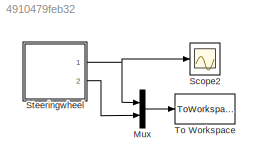
MODEL slx_4910479feb32
KIND model
CONFIG AbsTol = auto
CONFIG EnableMultiTasking = off
CONFIG FixedStep = auto
CONFIG MaxStep = 1e-2
CONFIG MinStep = auto
CONFIG RelTol = 1e-6
CONFIG SampleTimeConstraint = Unconstrained
CONFIG Solver = ode45
CONFIG SolverName = ode45
CONFIG StartTime = 0.0
CONFIG StopTime = 10
BLOCK [Mux] Mux
  DisplayOption = bar
  Inputs = 2
  Ports = [2, 1]
BLOCK [Scope] Scope2
  Floating = off
  NumInputPorts = 1
  Ports = [1]
  ScopeSpecificationString = Simulink.scopes.TimeScopeBlockCfg('CurrentConfiguration', extmgr.ConfigurationSet(extmgr.Configuration('Core','General UI',true),extmgr.Configuration('Core','Source UI',true),extmgr.Configuration('Sources','WiredSimulink',true,'DataLoggingVariableName','ScopeData2'),extmgr.Configuration('Visuals','Time Domain',true,'SerializedDisplays',{struct('MinYLimReal','-1.23875','MaxYLimReal','1.24875','YLab...<+1378ch>
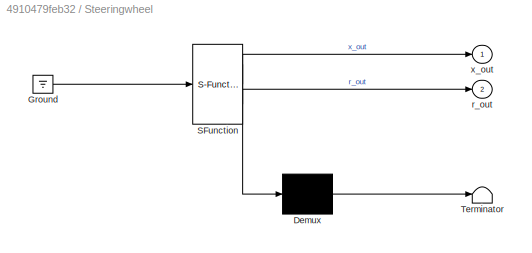
BLOCK [SubSystem] Steeringwheel
  ErrorFcn = Stateflow.Translate.translate
  PermitHierarchicalResolution = ExplicitOnly
  Ports = [0, 2]
  RequestExecContextInheritance = off
  SFBlockType = Chart
  TreatAsAtomicUnit = on
BLOCK [Demux] Steeringwheel/ Demux 
  Outputs = 1
  Ports = [1, 1]
BLOCK [Ground] Steeringwheel/ Ground 
BLOCK [S-Function] Steeringwheel/ SFunction 
  EnableBusSupport = on
  FunctionName = sf_sfun
  PortCounts = [1 3]
  Ports = [1, 3]
  SFcnIsStateOwnerBlock = off
  SFunctionDeploymentMode = off
  Tag = Stateflow S-Function steeringwheel 2
BLOCK [Terminator] Steeringwheel/ Terminator 
BLOCK [Outport] Steeringwheel/r_out
  IconDisplay = Port number
  Port = 2
BLOCK [Outport] Steeringwheel/x_out
  IconDisplay = Port number
BLOCK [ToWorkspace] To Workspace
  FixptAsFi = on
  MaxDataPoints = inf
  Ports = [1]
  SampleTime = -1
  Save2DSignal = 3-D array (concatenate along third dimension)
  SaveFormat = Timeseries
  VariableName = result
LINE Mux:1 -> To Workspace:1
NET Steeringwheel:1 -> Mux:1, Scope2:1
LINE Steeringwheel:2 -> Mux:2
note: NET lines group one-source signal fan-out (src -> all destinations, sorted); 1:1 wires keep LINE
CHART Steeringwheel states=2 transitions=3
  STATE_LABEL 'LeftTurn\ndu:\nr_dot = 1;\nr_out = r;\nx_out = cos(r);\n'
  STATE_LABEL 'RightTurn\ndu:\nr_dot = -3*pi;\nr_out = r;\nx_out = cos(r);'
